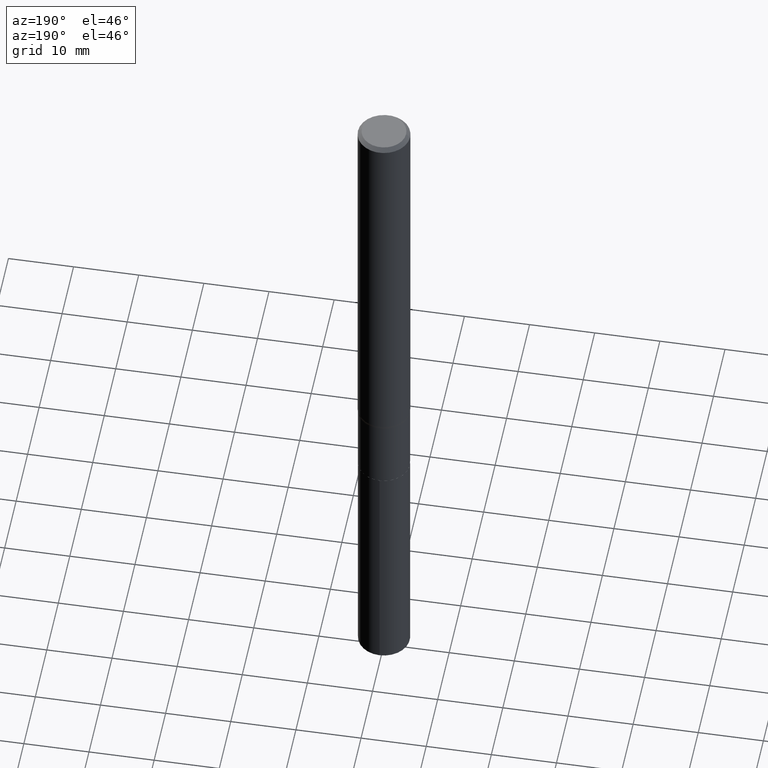
[diagram: clean part render]
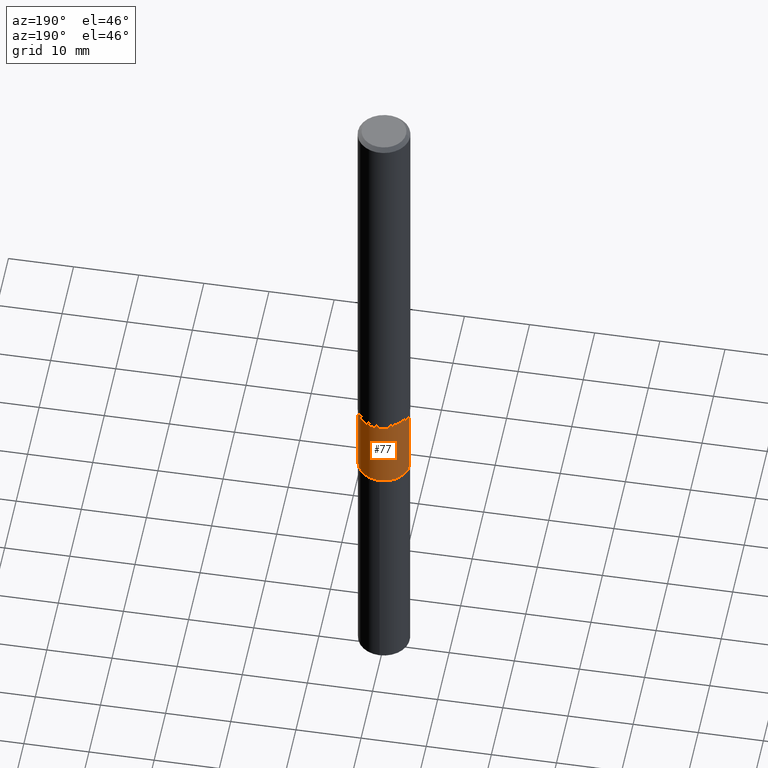
[diagram: same view with one face highlighted and labeled with its STEP entity id]
A machine part, auxiliary view. The second image highlights one B-rep face of the part: STEP entity #77.
In plain terms, the highlighted cylindrical surface (edge-blend (fillet) strip) has radius 3.9497 mm, axis along (-0, 0, 1).
Its self-contained STEP definition (entity closure, byte-faithful):
#5 = AXIS2_PLACEMENT_3D ( 'NONE', #311, #28, #170 ) ;
#7 = EDGE_CURVE ( 'NONE', #63, #448, #217, .T. ) ;
#9 = CARTESIAN_POINT ( 'NONE',  ( -0.1554999999999998883, -8.016950191754647736E-15, -2.391000000000000458 ) ) ;
#19 = VECTOR ( 'NONE', #293, 39.37007874015748143 ) ;
#28 = DIRECTION ( 'NONE',  ( -2.445468806185136597E-29, 3.491481338843145583E-15, 1.000000000000000000 ) ) ;
#47 = CARTESIAN_POINT ( 'NONE',  ( 0.1554999999999999438, -1.085850696380214268E-15, 7.582454886362678420E-30 ) ) ;
#52 = ORIENTED_EDGE ( 'NONE', *, *, #110, .T. ) ;
#56 = ORIENTED_EDGE ( 'NONE', *, *, #402, .F. ) ;
#63 = VERTEX_POINT ( 'NONE', #390 ) ;
#68 = DIRECTION ( 'NONE',  ( -2.445468806185136597E-29, 3.491481338843145583E-15, 1.000000000000000000 ) ) ;
#77 = ADVANCED_FACE ( 'NONE', ( #178 ), #355, .T. ) ;
#86 = AXIS2_PLACEMENT_3D ( 'NONE', #287, #68, #289 ) ;
#104 = LINE ( 'NONE', #432, #233 ) ;
#110 = EDGE_CURVE ( 'NONE', #448, #343, #104, .T. ) ;
#128 = ORIENTED_EDGE ( 'NONE', *, *, #329, .F. ) ;
#149 = LINE ( 'NONE', #47, #19 ) ;
#170 = DIRECTION ( 'NONE',  ( 1.000000000000000000, -6.982962677686271444E-15, 0.000000000000000000 ) ) ;
#178 = FACE_OUTER_BOUND ( 'NONE', #446, .T. ) ;
#217 = CIRCLE ( 'NONE', #266, 0.1554999999999999993 ) ;
#233 = VECTOR ( 'NONE', #248, 39.37007874015748143 ) ;
#248 = DIRECTION ( 'NONE',  ( -2.445468806185136877E-29, 3.491481338843145188E-15, 1.000000000000000000 ) ) ;
#266 = AXIS2_PLACEMENT_3D ( 'NONE', #279, #455, #378 ) ;
#279 = CARTESIAN_POINT ( 'NONE',  ( 6.930947690489914621E-29, -9.895556410549243682E-15, -2.834200000000000053 ) ) ;
#287 = CARTESIAN_POINT ( 'NONE',  ( 0.000000000000000000, 0.000000000000000000, 0.000000000000000000 ) ) ;
#289 = DIRECTION ( 'NONE',  ( 1.000000000000000000, -6.982962677686268288E-15, 4.876176775795936353E-29 ) ) ;
#293 = DIRECTION ( 'NONE',  ( -2.445468806185136877E-29, 3.491481338843145188E-15, 1.000000000000000000 ) ) ;
#311 = CARTESIAN_POINT ( 'NONE',  ( 5.847115915588662338E-29, -8.348131881173961387E-15, -2.391000000000000458 ) ) ;
#329 = EDGE_CURVE ( 'NONE', #63, #462, #149, .T. ) ;
#340 = CARTESIAN_POINT ( 'NONE',  ( 0.1554999999999998883, -9.433982577554176050E-15, -2.391000000000000458 ) ) ;
#343 = VERTEX_POINT ( 'NONE', #9 ) ;
#351 = CARTESIAN_POINT ( 'NONE',  ( -0.1554999999999999993, -8.016950191754646159E-15, -2.834200000000000053 ) ) ;
#355 = CYLINDRICAL_SURFACE ( 'NONE', #86, 0.1554999999999999438 ) ;
#378 = DIRECTION ( 'NONE',  ( 1.000000000000000000, -6.982962677686261977E-15, 0.000000000000000000 ) ) ;
#390 = CARTESIAN_POINT ( 'NONE',  ( 0.1554999999999999993, -1.098140710692945677E-14, -2.834200000000000053 ) ) ;
#402 = EDGE_CURVE ( 'NONE', #462, #343, #417, .T. ) ;
#417 = CIRCLE ( 'NONE', #5, 0.1554999999999998883 ) ;
#432 = CARTESIAN_POINT ( 'NONE',  ( -0.1554999999999999438, 1.104893954106955390E-15, -7.648944065346376022E-30 ) ) ;
#446 = EDGE_LOOP ( 'NONE', ( #452, #52, #56, #128 ) ) ;
#448 = VERTEX_POINT ( 'NONE', #351 ) ;
#452 = ORIENTED_EDGE ( 'NONE', *, *, #7, .T. ) ;
#455 = DIRECTION ( 'NONE',  ( -2.445468806185136597E-29, 3.491481338843145583E-15, 1.000000000000000000 ) ) ;
#462 = VERTEX_POINT ( 'NONE', #340 ) ;